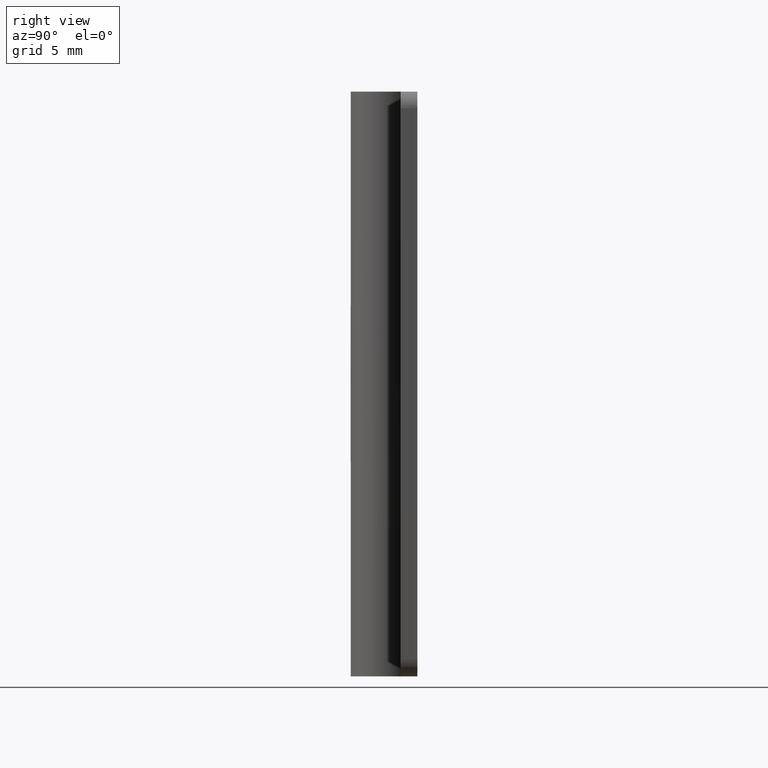
[diagram: clean part render]
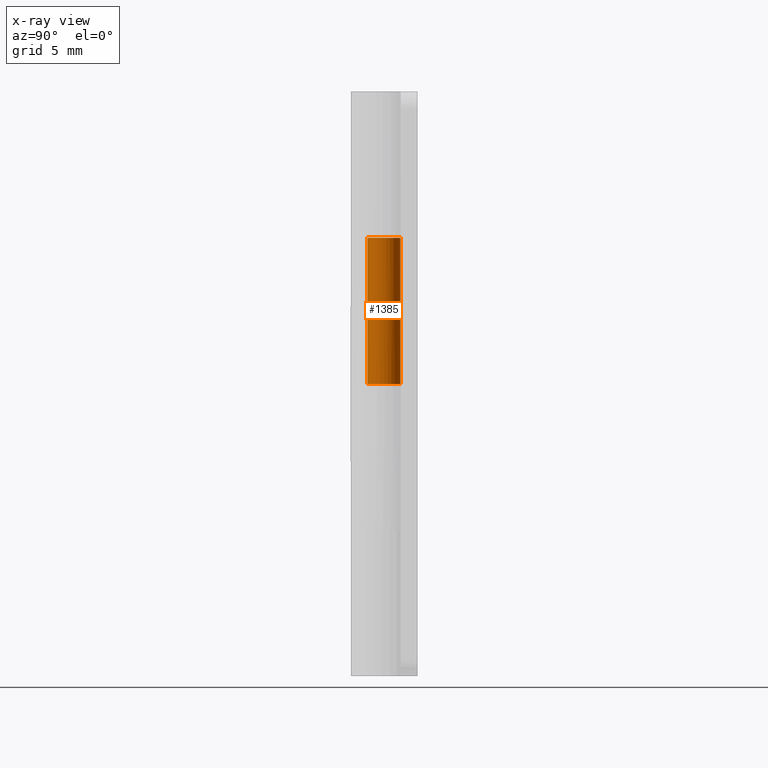
[diagram: x-ray — body ghosted, one internal face saturated and labeled with its STEP entity id]
A machine part, right view, then the same camera in x-ray: the body is ghosted and one INTERNAL B-rep face — a face not visible from any outside direction — is saturated and labeled: STEP entity #1385.
In plain terms, the highlighted face is a freeform B-spline surface patch.
Its self-contained STEP definition (entity closure, byte-faithful):
#961=CARTESIAN_POINT('',(-0.879985795339902,0.475000000000000,17.500000000000000));
#962=VERTEX_POINT('',#961);
#968=CARTESIAN_POINT('',(6.123032E-017,1.0,17.500000000000000));
#969=VERTEX_POINT('',#968);
#970=CARTESIAN_POINT('',(-0.879985795339902,0.475000000000000,17.500000000000000));
#971=CARTESIAN_POINT('',(-1.241772259107792,-0.195246208551572,17.499999999999996));
#972=CARTESIAN_POINT('',(-0.691759022314384,-0.722128420051896,17.500000000000000));
#973=CARTESIAN_POINT('',(-0.141745785520978,-1.249010631552219,17.499999999999996));
#974=CARTESIAN_POINT('',(0.512347538297979,-0.858778201865884,17.500000000000000));
#975=CARTESIAN_POINT('',(1.166440862116937,-0.468545772179548,17.499999999999996));
#976=CARTESIAN_POINT('',(0.964048287656247,0.265727113910226,17.500000000000000));
#977=CARTESIAN_POINT('',(0.761655713195557,1.0,17.499999999999996));
#978=CARTESIAN_POINT('',(0.0,1.0,17.500000000000000));
#986=(BOUNDED_CURVE()B_SPLINE_CURVE(2,(#970,#971,#972,#973,#974,#975,#976,#977,#978),.UNSPECIFIED.,.F.,.U.)B_SPLINE_CURVE_WITH_KNOTS((3,2,2,2,3),(0.0,0.250000000000000,0.500000000000000,0.750000000000000,1.0),.UNSPECIFIED.)CURVE()GEOMETRIC_REPRESENTATION_ITEM()RATIONAL_B_SPLINE_CURVE((1.0,0.795527219493534,1.0,0.795527219493534,1.0,0.795527219493534,1.0,0.795527219493534,1.0))REPRESENTATION_ITEM(''));
#987=EDGE_CURVE('',#962,#969,#986,.T.);
#1130=CARTESIAN_POINT('',(6.123122E-017,1.0,26.250000000000000));
#1131=VERTEX_POINT('',#1130);
#1137=CARTESIAN_POINT('',(-0.879985795339902,0.475000000000000,26.250000000000000));
#1138=VERTEX_POINT('',#1137);
#1139=CARTESIAN_POINT('',(0.0,1.0,26.250000000000000));
#1140=CARTESIAN_POINT('',(0.761655713195556,1.0,26.249999999999996));
#1141=CARTESIAN_POINT('',(0.964048287656247,0.265727113910226,26.250000000000000));
#1142=CARTESIAN_POINT('',(1.166440862116937,-0.468545772179547,26.249999999999996));
#1143=CARTESIAN_POINT('',(0.512347538297981,-0.858778201865883,26.250000000000000));
#1144=CARTESIAN_POINT('',(-0.141745785520976,-1.249010631552219,26.249999999999996));
#1145=CARTESIAN_POINT('',(-0.691759022314383,-0.722128420051897,26.250000000000000));
#1146=CARTESIAN_POINT('',(-1.241772259107791,-0.195246208551574,26.249999999999996));
#1147=CARTESIAN_POINT('',(-0.879985795339903,0.474999999999999,26.250000000000000));
#1155=(BOUNDED_CURVE()B_SPLINE_CURVE(2,(#1139,#1140,#1141,#1142,#1143,#1144,#1145,#1146,#1147),.UNSPECIFIED.,.F.,.U.)B_SPLINE_CURVE_WITH_KNOTS((3,2,2,2,3),(0.0,0.250000000000000,0.500000000000000,0.750000000000000,1.0),.UNSPECIFIED.)CURVE()GEOMETRIC_REPRESENTATION_ITEM()RATIONAL_B_SPLINE_CURVE((1.0,0.795527219493534,1.0,0.795527219493534,1.0,0.795527219493534,1.0,0.795527219493534,1.0))REPRESENTATION_ITEM(''));
#1156=EDGE_CURVE('',#1131,#1138,#1155,.T.);
#1341=CARTESIAN_POINT('',(6.123122E-017,1.0,26.250000000000000));
#1342=CARTESIAN_POINT('',(6.123032E-017,1.0,17.500000000000000));
#1343=QUASI_UNIFORM_CURVE('',1,(#1341,#1342),.UNSPECIFIED.,.F.,.U.);
#1344=EDGE_CURVE('',#1131,#969,#1343,.T.);
#1353=CARTESIAN_POINT('',(-0.867250195739734,0.497872572039666,26.468750000000000));
#1354=CARTESIAN_POINT('',(-0.867250195739734,0.497872572039666,17.275781249999991));
#1355=CARTESIAN_POINT('',(-1.471217921301096,-0.554186042211214,26.468750000000007));
#1356=CARTESIAN_POINT('',(-1.471217921301096,-0.554186042211214,17.275781249999991));
#1357=CARTESIAN_POINT('',(-0.323246112017932,-0.946314932284855,26.468750000000000));
#1358=CARTESIAN_POINT('',(-0.323246112017932,-0.946314932284855,17.275781249999991));
#1359=CARTESIAN_POINT('',(0.824725697265232,-1.338443822358497,26.468750000000007));
#1360=CARTESIAN_POINT('',(0.824725697265232,-1.338443822358497,17.275781249999991));
#1361=CARTESIAN_POINT('',(0.990606727526765,-0.136741768961475,26.468750000000000));
#1362=CARTESIAN_POINT('',(0.990606727526765,-0.136741768961475,17.275781249999991));
#1363=CARTESIAN_POINT('',(1.156487757788298,1.064960284435547,26.468750000000007));
#1364=CARTESIAN_POINT('',(1.156487757788298,1.064960284435547,17.275781249999991));
#1365=CARTESIAN_POINT('',(-0.054787236967325,0.998498051407956,26.468750000000000));
#1366=CARTESIAN_POINT('',(-0.054787236967325,0.998498051407956,17.275781249999991));
#1374=(BOUNDED_SURFACE()B_SPLINE_SURFACE(1,2,((#1353,#1355,#1357,#1359,#1361,#1363,#1365),(#1354,#1356,#1358,#1360,#1362,#1364,#1366)),.UNSPECIFIED.,.F.,.F.,.U.)B_SPLINE_SURFACE_WITH_KNOTS((2,2),(3,2,2,3),(0.0,9.192968750000009),(0.0,1.0,2.0,3.0),.UNSPECIFIED.)GEOMETRIC_REPRESENTATION_ITEM()RATIONAL_B_SPLINE_SURFACE(((1.0,0.636078220277764,1.0,0.636078220277764,1.0,0.636078220277764,1.0),(1.0,0.636078220277764,1.0,0.636078220277764,1.0,0.636078220277764,1.0)))REPRESENTATION_ITEM('')SURFACE());
#1375=ORIENTED_EDGE('',*,*,#987,.F.);
#1376=CARTESIAN_POINT('',(-0.879985795339902,0.475000000000000,26.250000000000000));
#1377=CARTESIAN_POINT('',(-0.879985795339902,0.475000000000000,17.500000000000000));
#1378=QUASI_UNIFORM_CURVE('',1,(#1376,#1377),.UNSPECIFIED.,.F.,.U.);
#1379=EDGE_CURVE('',#1138,#962,#1378,.T.);
#1380=ORIENTED_EDGE('',*,*,#1379,.F.);
#1381=ORIENTED_EDGE('',*,*,#1156,.F.);
#1382=ORIENTED_EDGE('',*,*,#1344,.T.);
#1383=EDGE_LOOP('',(#1375,#1380,#1381,#1382));
#1384=FACE_OUTER_BOUND('',#1383,.T.);
#1385=ADVANCED_FACE('',(#1384),#1374,.F.);